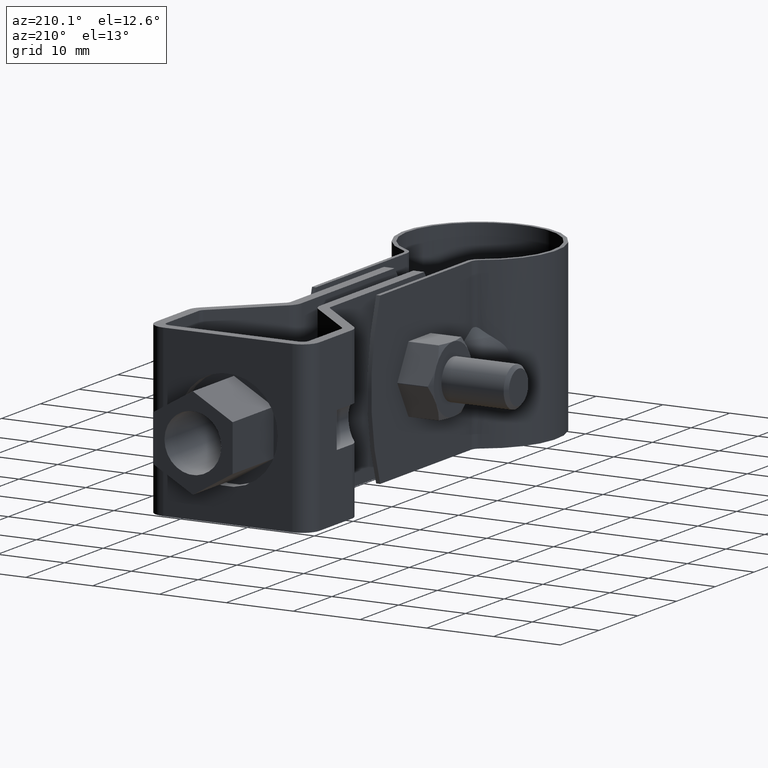
[diagram: clean part render]
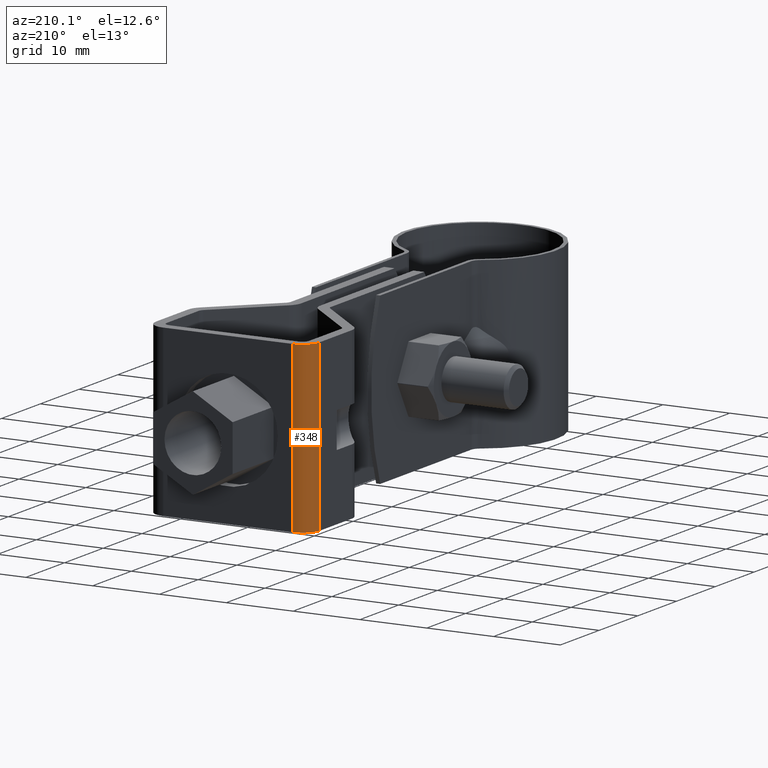
[diagram: same view with one face highlighted and labeled with its STEP entity id]
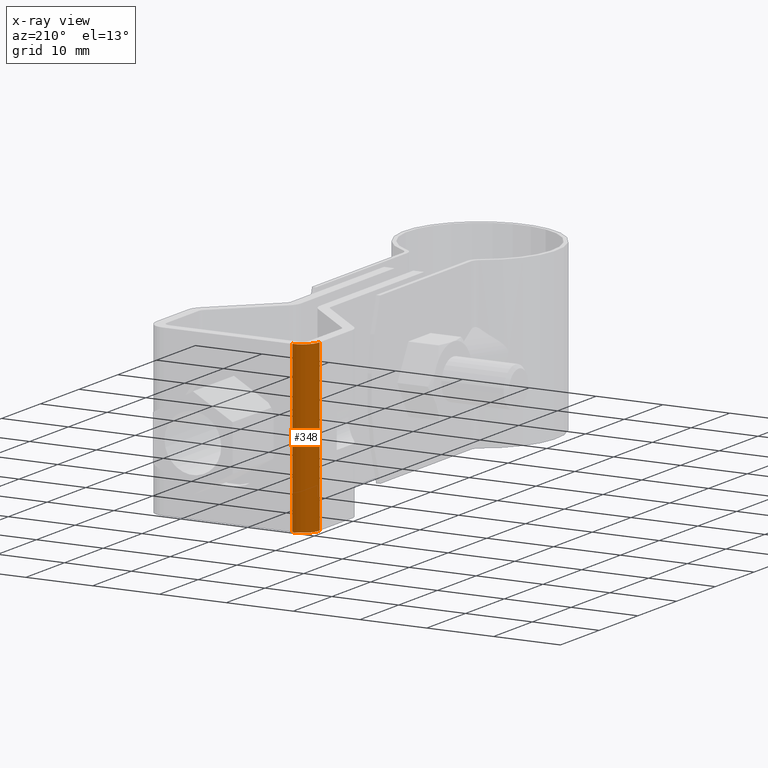
[diagram: x-ray of the same camera — body ghosted, the highlighted face saturated]
A machine part, auxiliary view. The second image highlights one B-rep face of the part: STEP entity #348.
The next image is the same camera in x-ray: the body ghosted, the highlighted face saturated — about 0% of this face is hidden behind the body in this view.
In plain terms, the highlighted cylindrical surface (edge-blend (fillet) strip) has radius 2.6 mm, axis along (-0, 0, -1).
Its self-contained STEP definition (entity closure, byte-faithful):
#348 = ADVANCED_FACE( '', ( #567 ), #568, .T. );
#567 = FACE_OUTER_BOUND( '', #839, .T. );
#568 = CYLINDRICAL_SURFACE( '', #840, 2.60000000000000 );
#839 = EDGE_LOOP( '', ( #1602, #1603, #1604, #1605 ) );
#840 = AXIS2_PLACEMENT_3D( '', #1606, #1607, #1608 );
#1602 = ORIENTED_EDGE( '', *, *, #2166, .T. );
#1603 = ORIENTED_EDGE( '', *, *, #2167, .F. );
#1604 = ORIENTED_EDGE( '', *, *, #2114, .F. );
#1605 = ORIENTED_EDGE( '', *, *, #2154, .T. );
#1606 = CARTESIAN_POINT( '', ( -9.64999999655044, 62.5228154072078, -12.4999986214368 ) );
#1607 = DIRECTION( '', ( -1.87698704392248E-011, 9.98350074832307E-009, -1.00000000000000 ) );
#1608 = DIRECTION( '', ( 1.39876277799465E-011, 1.00000000000000, 9.98350074832280E-009 ) );
#2114 = EDGE_CURVE( '', #2558, #2560, #2561, .T. );
#2154 = EDGE_CURVE( '', #2558, #2628, #2630, .T. );
#2166 = EDGE_CURVE( '', #2628, #2647, #2648, .T. );
#2167 = EDGE_CURVE( '', #2560, #2647, #2649, .T. );
#2558 = VERTEX_POINT( '', #3332 );
#2560 = VERTEX_POINT( '', #3335 );
#2561 = CIRCLE( '', #3336, 2.59999999999999 );
#2628 = VERTEX_POINT( '', #3450 );
#2630 = LINE( '', #3453, #3454 );
#2647 = VERTEX_POINT( '', #3480 );
#2648 = CIRCLE( '', #3481, 2.59999999999999 );
#2649 = LINE( '', #3482, #3483 );
#3332 = CARTESIAN_POINT( '', ( -12.2499999965504, 62.5228154072442, -12.4999986213880 ) );
#3335 = CARTESIAN_POINT( '', ( -9.64999999651407, 65.1228154072078, -12.4999985954797 ) );
#3336 = AXIS2_PLACEMENT_3D( '', #4007, #4008, #4009 );
#3450 = CARTESIAN_POINT( '', ( -12.2499999960812, 62.5228151576566, 12.5000013786120 ) );
#3453 = CARTESIAN_POINT( '', ( -12.2499999965504, 62.5228154072442, -12.4999986213880 ) );
#3454 = VECTOR( '', #4071, 1000.00000000000 );
#3480 = CARTESIAN_POINT( '', ( -9.64999999604482, 65.1228151576202, 12.5000014045203 ) );
#3481 = AXIS2_PLACEMENT_3D( '', #4087, #4088, #4089 );
#3482 = CARTESIAN_POINT( '', ( -9.64999999651407, 65.1228154072078, -12.4999985954797 ) );
#3483 = VECTOR( '', #4090, 1000.00000000000 );
#4007 = CARTESIAN_POINT( '', ( -9.64999999655044, 62.5228154072078, -12.4999986214368 ) );
#4008 = DIRECTION( '', ( -1.87698704392248E-011, 9.98350074832307E-009, -1.00000000000000 ) );
#4009 = DIRECTION( '', ( -1.00000000000000, 1.39876275925575E-011, 1.87698705788703E-011 ) );
#4071 = DIRECTION( '', ( 1.87698704392248E-011, -9.98350074832307E-009, 1.00000000000000 ) );
#4087 = CARTESIAN_POINT( '', ( -9.64999999608119, 62.5228151576202, 12.5000013785632 ) );
#4088 = DIRECTION( '', ( -1.87698704392248E-011, 9.98350074832307E-009, -1.00000000000000 ) );
#4089 = DIRECTION( '', ( -1.00000000000000, 1.39876275925575E-011, 1.87698705788703E-011 ) );
#4090 = DIRECTION( '', ( 1.87698704392248E-011, -9.98350074832307E-009, 1.00000000000000 ) );